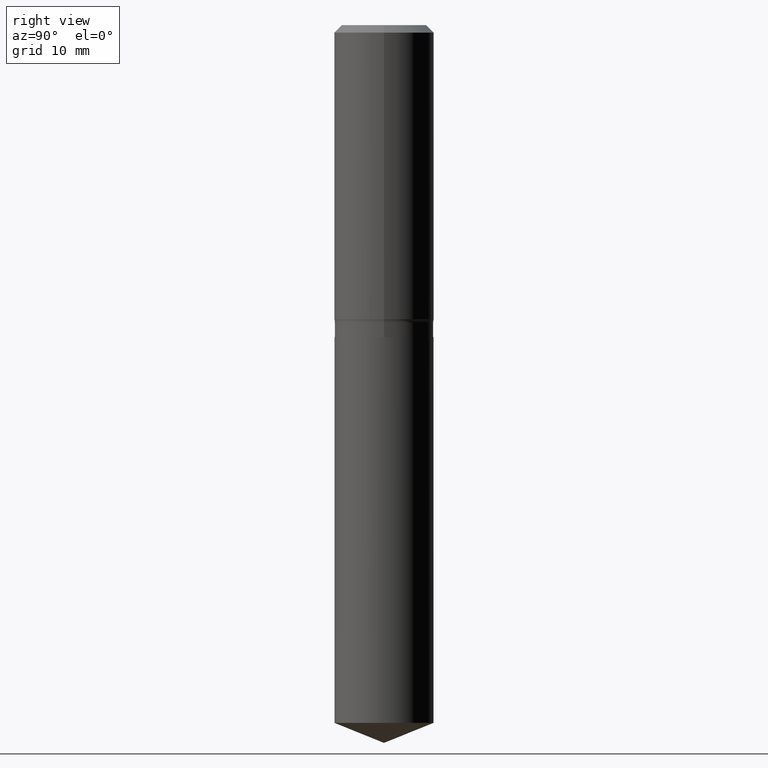
[diagram: clean part render]
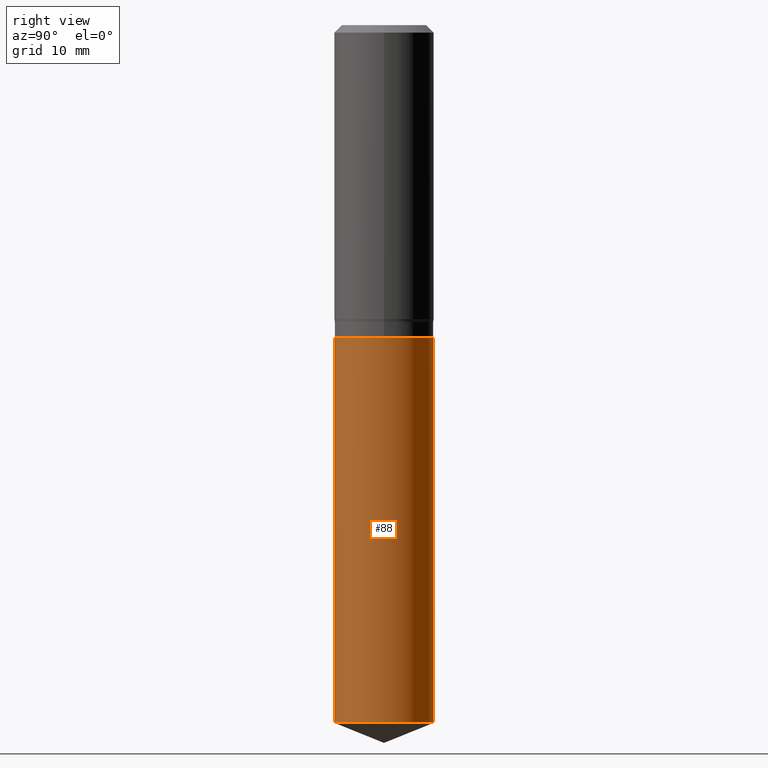
[diagram: same view with one face highlighted and labeled with its STEP entity id]
A machine part, right view. The second image highlights one B-rep face of the part: STEP entity #88.
In plain terms, the highlighted cylindrical surface (partial cylindrical patch) has radius 7.9375 mm, axis along (-0, 0, 1).
Its self-contained STEP definition (entity closure, byte-faithful):
#17 = ORIENTED_EDGE ( 'NONE', *, *, #476, .T. ) ;
#19 = LINE ( 'NONE', #435, #423 ) ;
#73 = CARTESIAN_POINT ( 'NONE',  ( 4.813905344975440153E-29, -6.872981015512730130E-15, -1.968499999999999472 ) ) ;
#84 = VERTEX_POINT ( 'NONE', #192 ) ;
#85 = CARTESIAN_POINT ( 'NONE',  ( 2.220446049250420760E-15, 0.3124999999999931166, -1.968500000000000583 ) ) ;
#88 = ADVANCED_FACE ( 'NONE', ( #348 ), #311, .T. ) ;
#108 = DIRECTION ( 'NONE',  ( -6.982962677686265133E-15, -1.000000000000000000, 3.496765431890256920E-15 ) ) ;
#122 = VERTEX_POINT ( 'NONE', #394 ) ;
#133 = ORIENTED_EDGE ( 'NONE', *, *, #370, .T. ) ;
#149 = DIRECTION ( 'NONE',  ( -2.445316251726159407E-29, 3.491699805511261497E-15, 1.000000000000000000 ) ) ;
#158 = VERTEX_POINT ( 'NONE', #367 ) ;
#174 = DIRECTION ( 'NONE',  ( -2.445316251726159407E-29, 3.491699805511261891E-15, 1.000000000000000000 ) ) ;
#192 = CARTESIAN_POINT ( 'NONE',  ( -2.182175836776850668E-15, -0.3125000000000153766, -4.401341804426513349 ) ) ;
#221 = AXIS2_PLACEMENT_3D ( 'NONE', #73, #233, #390 ) ;
#233 = DIRECTION ( 'NONE',  ( -2.445316251726159407E-29, 3.491699805511261497E-15, 1.000000000000000000 ) ) ;
#237 = DIRECTION ( 'NONE',  ( -6.982962677686265133E-15, -1.000000000000000000, 3.496765431890256920E-15 ) ) ;
#240 = DIRECTION ( 'NONE',  ( -2.445316251726159407E-29, 3.491699805511261497E-15, 1.000000000000000000 ) ) ;
#245 = AXIS2_PLACEMENT_3D ( 'NONE', #346, #149, #108 ) ;
#250 = ORIENTED_EDGE ( 'NONE', *, *, #307, .F. ) ;
#255 = VERTEX_POINT ( 'NONE', #85 ) ;
#256 = EDGE_CURVE ( 'NONE', #158, #255, #396, .T. ) ;
#307 = EDGE_CURVE ( 'NONE', #84, #158, #19, .T. ) ;
#311 = CYLINDRICAL_SURFACE ( 'NONE', #221, 0.3125000000000000000 ) ;
#316 = EDGE_LOOP ( 'NONE', ( #133, #17, #364, #250 ) ) ;
#317 = AXIS2_PLACEMENT_3D ( 'NONE', #354, #240, #237 ) ;
#346 = CARTESIAN_POINT ( 'NONE',  ( 1.076297294721839221E-28, -1.536773427086845792E-14, -4.401341804426514237 ) ) ;
#348 = FACE_OUTER_BOUND ( 'NONE', #316, .T. ) ;
#354 = CARTESIAN_POINT ( 'NONE',  ( 4.813905344975440153E-29, -6.872981015512730130E-15, -1.968499999999999472 ) ) ;
#357 = CIRCLE ( 'NONE', #245, 0.3125000000000000000 ) ;
#364 = ORIENTED_EDGE ( 'NONE', *, *, #256, .F. ) ;
#365 = DIRECTION ( 'NONE',  ( -2.445316251726159407E-29, 3.491699805511261891E-15, 1.000000000000000000 ) ) ;
#367 = CARTESIAN_POINT ( 'NONE',  ( -2.182175836776910227E-15, -0.3125000000000069389, -1.968499999999998362 ) ) ;
#370 = EDGE_CURVE ( 'NONE', #84, #122, #357, .T. ) ;
#376 = LINE ( 'NONE', #402, #384 ) ;
#384 = VECTOR ( 'NONE', #365, 39.37007874015748143 ) ;
#390 = DIRECTION ( 'NONE',  ( -6.982962677686265133E-15, -1.000000000000000000, 3.496765431890256920E-15 ) ) ;
#394 = CARTESIAN_POINT ( 'NONE',  ( 2.220446049250420366E-15, 0.3124999999999847344, -4.401341804426515125 ) ) ;
#396 = CIRCLE ( 'NONE', #317, 0.3125000000000000000 ) ;
#402 = CARTESIAN_POINT ( 'NONE',  ( 2.220446049250360807E-15, 0.3124999999999931166, -1.968500000000000583 ) ) ;
#423 = VECTOR ( 'NONE', #174, 39.37007874015748143 ) ;
#435 = CARTESIAN_POINT ( 'NONE',  ( -2.182175836776910227E-15, -0.3125000000000069389, -1.968499999999998362 ) ) ;
#476 = EDGE_CURVE ( 'NONE', #122, #255, #376, .T. ) ;